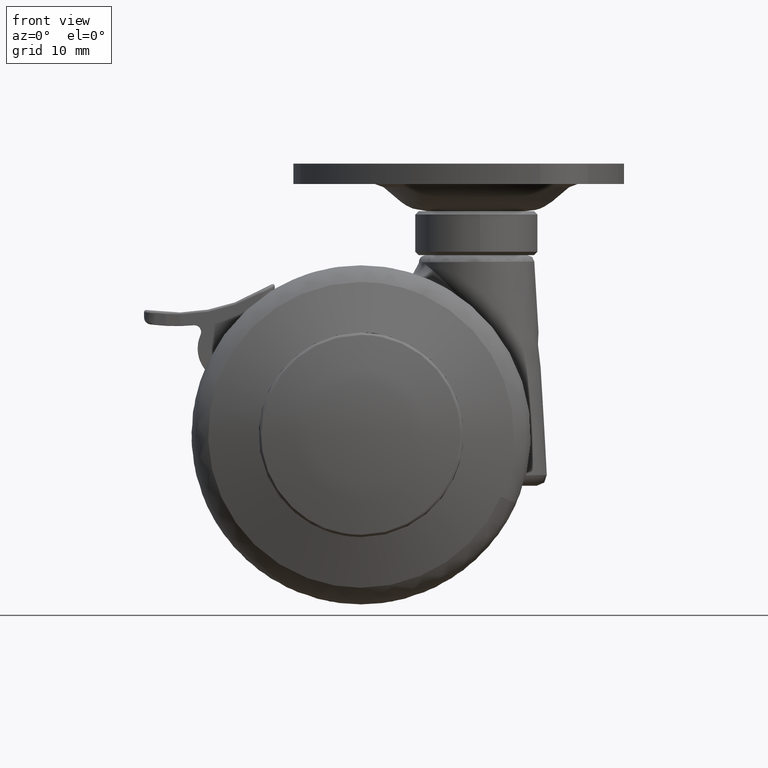
[diagram: clean part render]
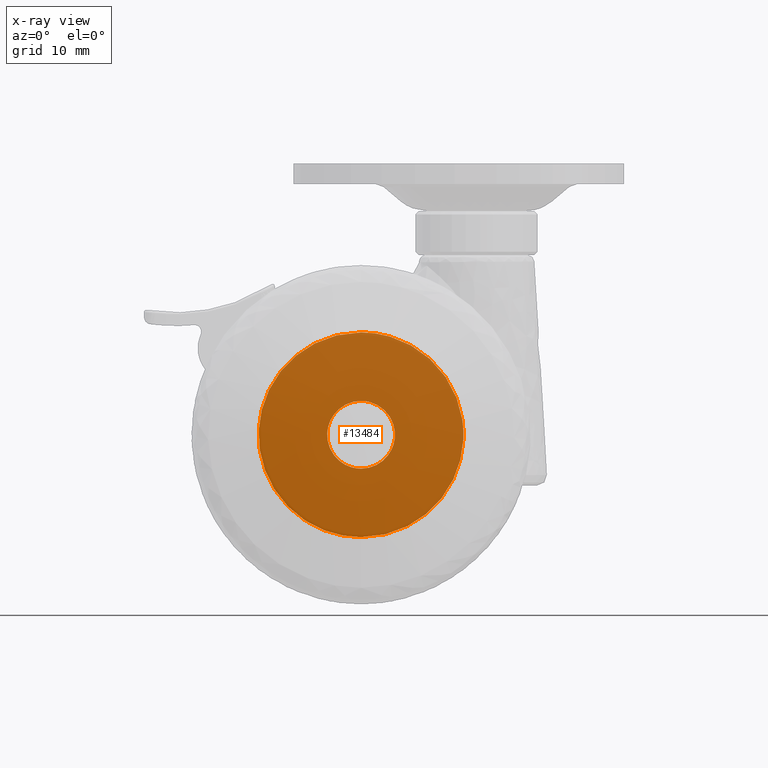
[diagram: x-ray — body ghosted, one internal face saturated and labeled with its STEP entity id]
A machine part, front view, then the same camera in x-ray: the body is ghosted and one INTERNAL B-rep face — a face not visible from any outside direction — is saturated and labeled: STEP entity #13484.
In plain terms, the highlighted face is a freeform B-spline surface patch.
Its self-contained STEP definition (entity closure, byte-faithful):
#9662=CARTESIAN_POINT('',(4.965047631810130,18.500000000000000,-0.590171173352793));
#9663=VERTEX_POINT('',#9662);
#9664=CARTESIAN_POINT('',(0.0,18.500000000000000,5.000000000000002));
#9665=VERTEX_POINT('',#9664);
#9666=CARTESIAN_POINT('',(4.965047631810130,18.500000000000000,-0.590171173352793));
#9667=CARTESIAN_POINT('',(5.000000000000001,18.499999999999996,-0.296120598329281));
#9668=CARTESIAN_POINT('',(5.0,18.500000000000000,1.789254E-015));
#9669=CARTESIAN_POINT('',(5.000000000000001,18.500000000000000,5.000000000000002));
#9670=CARTESIAN_POINT('',(0.0,18.500000000000000,5.000000000000002));
#9678=(BOUNDED_CURVE()B_SPLINE_CURVE(2,(#9666,#9667,#9668,#9669,#9670),.UNSPECIFIED.,.F.,.U.)B_SPLINE_CURVE_WITH_KNOTS((3,2,3),(0.229562473510947,0.250000000000000,0.500000000000000),.UNSPECIFIED.)CURVE()GEOMETRIC_REPRESENTATION_ITEM()RATIONAL_B_SPLINE_CURVE((0.956026754178678,0.976055948328144,1.0,0.707106781186548,1.0))REPRESENTATION_ITEM(''));
#9679=EDGE_CURVE('',#9663,#9665,#9678,.T.);
#9681=CARTESIAN_POINT('',(-4.990673992103201,18.500000000000000,0.305242697774559));
#9682=VERTEX_POINT('',#9681);
#9683=CARTESIAN_POINT('',(0.0,18.500000000000000,5.000000000000002));
#9684=CARTESIAN_POINT('',(-4.703530334339120,18.499999999999996,5.000000000000002));
#9685=CARTESIAN_POINT('',(-4.990673992103201,18.500000000000004,0.305242697774559));
#9693=(BOUNDED_CURVE()B_SPLINE_CURVE(2,(#9683,#9684,#9685),.UNSPECIFIED.,.F.,.U.)B_SPLINE_CURVE_WITH_KNOTS((3,3),(0.500000000000000,0.739332962235035),.UNSPECIFIED.)CURVE()GEOMETRIC_REPRESENTATION_ITEM()RATIONAL_B_SPLINE_CURVE((1.0,0.719603993291289,0.976072041658342))REPRESENTATION_ITEM(''));
#9694=EDGE_CURVE('',#9665,#9682,#9693,.T.);
#9761=CARTESIAN_POINT('',(0.0,18.500000000000000,-4.999999999999998));
#9762=VERTEX_POINT('',#9761);
#9763=CARTESIAN_POINT('',(0.0,18.500000000000000,-4.999999999999998));
#9764=CARTESIAN_POINT('',(4.440872629632536,18.499999999999993,-4.999999999999999));
#9765=CARTESIAN_POINT('',(4.965047631810130,18.500000000000004,-0.590171173352793));
#9773=(BOUNDED_CURVE()B_SPLINE_CURVE(2,(#9763,#9764,#9765),.UNSPECIFIED.,.F.,.U.)B_SPLINE_CURVE_WITH_KNOTS((3,3),(0.0,0.229562473510947),.UNSPECIFIED.)CURVE()GEOMETRIC_REPRESENTATION_ITEM()RATIONAL_B_SPLINE_CURVE((1.0,0.731050832858404,0.956026754178679))REPRESENTATION_ITEM(''));
#9774=EDGE_CURVE('',#9762,#9663,#9773,.T.);
#9808=CARTESIAN_POINT('',(-4.990673992103201,18.500000000000000,0.305242697774559));
#9809=CARTESIAN_POINT('',(-5.0,18.499999999999996,0.152763816593501));
#9810=CARTESIAN_POINT('',(-5.0,18.500000000000000,1.789254E-015));
#9811=CARTESIAN_POINT('',(-5.000000000000001,18.500000000000000,-4.999999999999997));
#9812=CARTESIAN_POINT('',(0.0,18.500000000000000,-4.999999999999998));
#9820=(BOUNDED_CURVE()B_SPLINE_CURVE(2,(#9808,#9809,#9810,#9811,#9812),.UNSPECIFIED.,.F.,.U.)B_SPLINE_CURVE_WITH_KNOTS((3,2,3),(0.739332962235035,0.750000000000000,1.0),.UNSPECIFIED.)CURVE()GEOMETRIC_REPRESENTATION_ITEM()RATIONAL_B_SPLINE_CURVE((0.976072041658342,0.987502787895259,1.0,0.707106781186548,1.0))REPRESENTATION_ITEM(''));
#9821=EDGE_CURVE('',#9682,#9762,#9820,.T.);
#9933=CARTESIAN_POINT('',(14.934142989254809,18.500000000000000,2.231899006663575));
#9934=VERTEX_POINT('',#9933);
#9940=CARTESIAN_POINT('',(0.0,18.500000000000000,-15.100000000000000));
#9941=VERTEX_POINT('',#9940);
#9942=CARTESIAN_POINT('',(0.0,18.500000000000000,-15.100000000000000));
#9943=CARTESIAN_POINT('',(15.100000000000005,18.500000000000004,-15.100000000000005));
#9944=CARTESIAN_POINT('',(15.100000000000000,18.500000000000000,1.789254E-015));
#9945=CARTESIAN_POINT('',(15.100000000000000,18.500000000000000,1.122112091318791));
#9946=CARTESIAN_POINT('',(14.934142989254811,18.500000000000004,2.231899006663574));
#9954=(BOUNDED_CURVE()B_SPLINE_CURVE(2,(#9942,#9943,#9944,#9945,#9946),.UNSPECIFIED.,.F.,.U.)B_SPLINE_CURVE_WITH_KNOTS((3,2,3),(0.0,0.250000000000000,0.275488710825242),.UNSPECIFIED.)CURVE()GEOMETRIC_REPRESENTATION_ITEM()RATIONAL_B_SPLINE_CURVE((1.0,0.707106781186547,1.0,0.970138117771959,0.946365362590381))REPRESENTATION_ITEM(''));
#9955=EDGE_CURVE('',#9941,#9934,#9954,.T.);
#9957=CARTESIAN_POINT('',(0.0,18.500000000000000,15.100000000000000));
#9958=VERTEX_POINT('',#9957);
#9959=CARTESIAN_POINT('',(0.0,18.500000000000000,15.100000000000000));
#9960=CARTESIAN_POINT('',(-15.100000000000005,18.500000000000004,15.100000000000005));
#9961=CARTESIAN_POINT('',(-15.100000000000000,18.500000000000000,1.789254E-015));
#9962=CARTESIAN_POINT('',(-15.100000000000005,18.500000000000004,-15.100000000000005));
#9963=CARTESIAN_POINT('',(0.0,18.500000000000000,-15.100000000000000));
#9971=(BOUNDED_CURVE()B_SPLINE_CURVE(2,(#9959,#9960,#9961,#9962,#9963),.UNSPECIFIED.,.F.,.U.)B_SPLINE_CURVE_WITH_KNOTS((3,2,3),(0.500000000000000,0.750000000000000,1.0),.UNSPECIFIED.)CURVE()GEOMETRIC_REPRESENTATION_ITEM()RATIONAL_B_SPLINE_CURVE((1.0,0.707106781186547,1.0,0.707106781186547,1.0))REPRESENTATION_ITEM(''));
#9972=EDGE_CURVE('',#9958,#9941,#9971,.T.);
#9974=CARTESIAN_POINT('',(10.141254535638970,18.500000000000000,11.187714531725470));
#9975=VERTEX_POINT('',#9974);
#9976=CARTESIAN_POINT('',(10.141254535638973,18.500000000000007,11.187714531725470));
#9977=CARTESIAN_POINT('',(5.825266019966298,18.500000000000004,15.100000000000007));
#9978=CARTESIAN_POINT('',(0.0,18.500000000000000,15.100000000000000));
#9986=(BOUNDED_CURVE()B_SPLINE_CURVE(2,(#9976,#9977,#9978),.UNSPECIFIED.,.F.,.U.)B_SPLINE_CURVE_WITH_KNOTS((3,3),(0.382398571354344,0.500000000000000),.UNSPECIFIED.)CURVE()GEOMETRIC_REPRESENTATION_ITEM()RATIONAL_B_SPLINE_CURVE((0.854066435084115,0.862221356107653,1.0))REPRESENTATION_ITEM(''));
#9987=EDGE_CURVE('',#9975,#9958,#9986,.T.);
#10029=CARTESIAN_POINT('',(14.934142989254811,18.499999999999996,2.231899006663575));
#10030=CARTESIAN_POINT('',(14.137007965085870,18.500000000000000,7.565710436935568));
#10031=CARTESIAN_POINT('',(10.141254535638973,18.500000000000007,11.187714531725470));
#10039=(BOUNDED_CURVE()B_SPLINE_CURVE(2,(#10029,#10030,#10031),.UNSPECIFIED.,.F.,.U.)B_SPLINE_CURVE_WITH_KNOTS((3,3),(0.275488710825242,0.382398571354344),.UNSPECIFIED.)CURVE()GEOMETRIC_REPRESENTATION_ITEM()RATIONAL_B_SPLINE_CURVE((0.946365362590381,0.846652907210408,0.854066435084115))REPRESENTATION_ITEM(''));
#10040=EDGE_CURVE('',#9934,#9975,#10039,.T.);
#13467=CARTESIAN_POINT('',(-16.608281083074210,18.500000000000000,-16.608490508458530));
#13468=CARTESIAN_POINT('',(-16.608281083074210,18.500000000000000,16.608490778467559));
#13469=CARTESIAN_POINT('',(16.604088652697200,18.500000000000000,-16.608490508458530));
#13470=CARTESIAN_POINT('',(16.604088652697200,18.500000000000000,16.608490778467559));
#13471=B_SPLINE_SURFACE_WITH_KNOTS('',1,1,((#13467,#13469),(#13468,#13470)),.UNSPECIFIED.,.F.,.F.,.U.,(2,2),(2,2),(0.0,33.216981286926092),(0.0,33.212369735771397),.UNSPECIFIED.);
#13472=ORIENTED_EDGE('',*,*,#9955,.T.);
#13473=ORIENTED_EDGE('',*,*,#10040,.T.);
#13474=ORIENTED_EDGE('',*,*,#9987,.T.);
#13475=ORIENTED_EDGE('',*,*,#9972,.T.);
#13476=EDGE_LOOP('',(#13472,#13473,#13474,#13475));
#13477=FACE_OUTER_BOUND('',#13476,.T.);
#13478=ORIENTED_EDGE('',*,*,#9694,.F.);
#13479=ORIENTED_EDGE('',*,*,#9679,.F.);
#13480=ORIENTED_EDGE('',*,*,#9774,.F.);
#13481=ORIENTED_EDGE('',*,*,#9821,.F.);
#13482=EDGE_LOOP('',(#13478,#13479,#13480,#13481));
#13483=FACE_BOUND('',#13482,.T.);
#13484=ADVANCED_FACE('',(#13477,#13483),#13471,.F.);